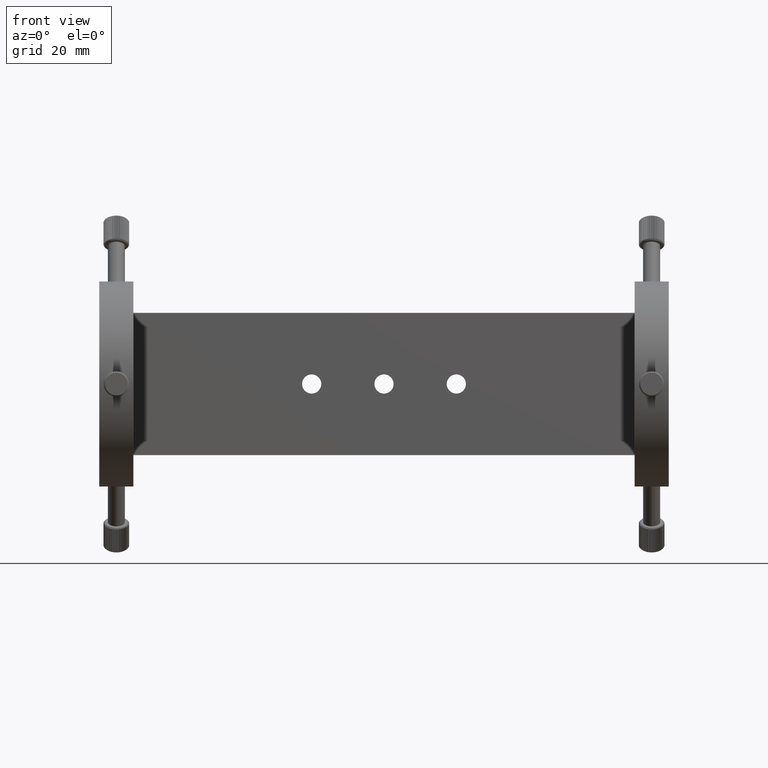
[diagram: clean part render]
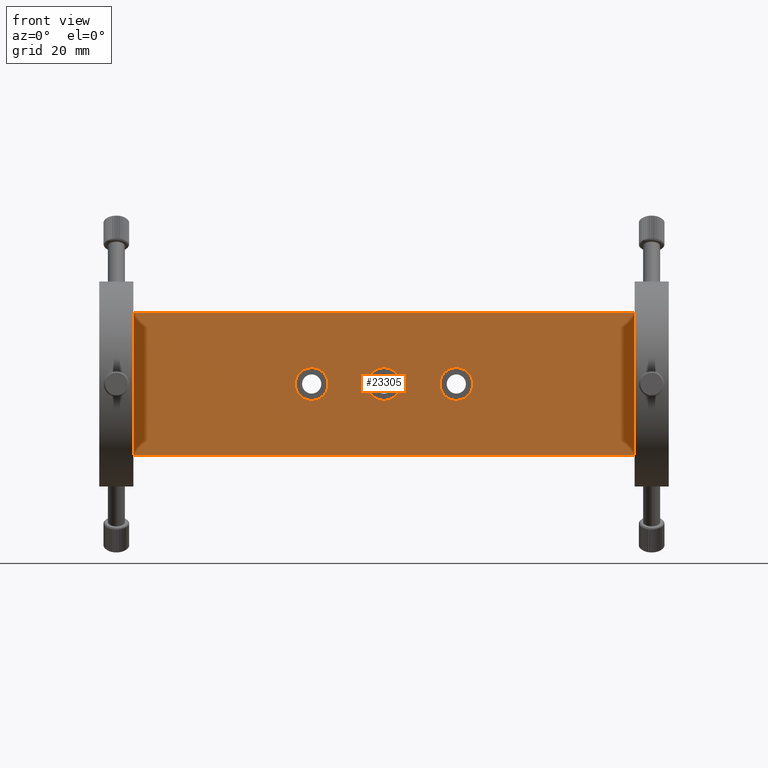
[diagram: same view with one face highlighted and labeled with its STEP entity id]
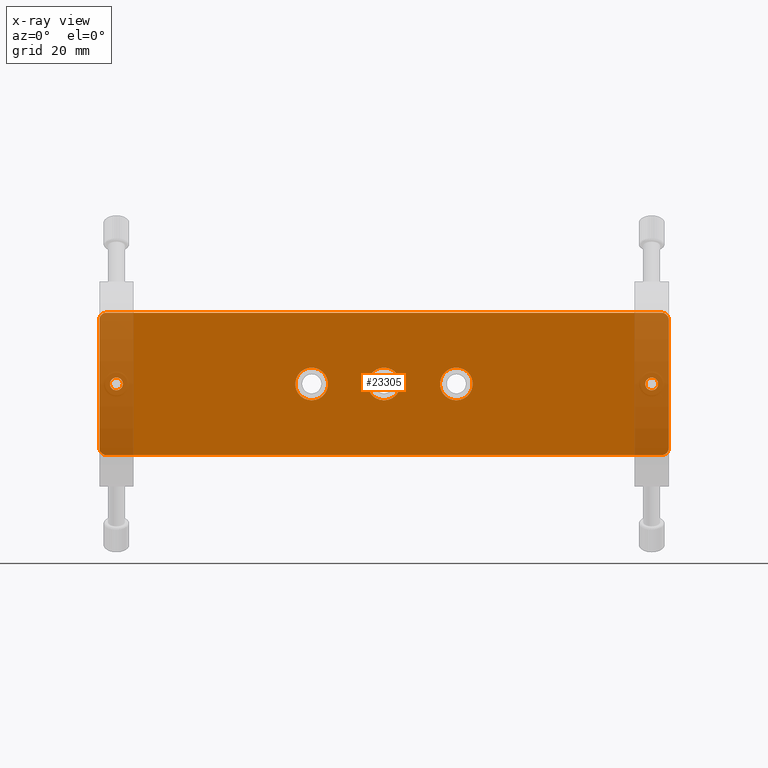
[diagram: x-ray of the same camera — body ghosted, the highlighted face saturated]
A machine part, front view. The second image highlights one B-rep face of the part: STEP entity #23305.
The next image is the same camera in x-ray: the body ghosted, the highlighted face saturated — about 12% of this face is hidden behind the body in this view.
In plain terms, the highlighted planar face has unit normal (-0, -1, 0).
Its self-contained STEP definition (entity closure, byte-faithful):
#12 = CARTESIAN_POINT ( 'NONE',  ( 96.36693914623070600, -17.41295791704509100, 22.50000000000001800 ) ) ;
#622 = AXIS2_PLACEMENT_3D ( 'NONE', #19134, #9030, #29697 ) ;
#631 = CARTESIAN_POINT ( 'NONE',  ( 21.76693914623065900, -17.41295791704509100, -5.754369999999993500 ) ) ;
#735 = VERTEX_POINT ( 'NONE', #23636 ) ;
#782 = CARTESIAN_POINT ( 'NONE',  ( -103.6330608537693600, -17.41295791704509100, -22.50000000000000400 ) ) ;
#911 = CARTESIAN_POINT ( 'NONE',  ( 93.86693914623070600, -17.41295791704509100, 25.00000000000002100 ) ) ;
#1126 = FACE_BOUND ( 'NONE', #17413, .T. ) ;
#1275 = AXIS2_PLACEMENT_3D ( 'NONE', #18523, #23400, #25965 ) ;
#1679 = VECTOR ( 'NONE', #10974, 1000.000000000000000 ) ;
#2050 = VERTEX_POINT ( 'NONE', #25296 ) ;
#2143 = AXIS2_PLACEMENT_3D ( 'NONE', #12743, #17834, #28282 ) ;
#2402 = ORIENTED_EDGE ( 'NONE', *, *, #28344, .F. ) ;
#2664 = DIRECTION ( 'NONE',  ( 5.551115123125781500E-017, -3.212344377754001400E-032, -1.000000000000000000 ) ) ;
#3037 = ORIENTED_EDGE ( 'NONE', *, *, #29666, .T. ) ;
#3077 = ORIENTED_EDGE ( 'NONE', *, *, #31560, .T. ) ;
#3154 = EDGE_LOOP ( 'NONE', ( #11352, #2402 ) ) ;
#3293 = AXIS2_PLACEMENT_3D ( 'NONE', #22539, #4774, #9878 ) ;
#3546 = EDGE_LOOP ( 'NONE', ( #6267, #3037, #3960, #24044, #3077, #10363, #19700, #16225 ) ) ;
#3690 = CARTESIAN_POINT ( 'NONE',  ( 90.36693914623070600, -17.41295791704509100, 1.215694211964546400E-014 ) ) ;
#3960 = ORIENTED_EDGE ( 'NONE', *, *, #14288, .T. ) ;
#4068 = EDGE_CURVE ( 'NONE', #11622, #24386, #18087, .T. ) ;
#4246 = EDGE_CURVE ( 'NONE', #27358, #5417, #10125, .T. ) ;
#4525 = VECTOR ( 'NONE', #9157, 1000.000000000000000 ) ;
#4774 = DIRECTION ( 'NONE',  ( -1.438252834678956100E-032, -1.000000000000000000, 3.212344377754002500E-032 ) ) ;
#4822 = VERTEX_POINT ( 'NONE', #25594 ) ;
#5114 = CARTESIAN_POINT ( 'NONE',  ( 93.86693914623070600, -17.41295791704509100, -24.99999999999999300 ) ) ;
#5144 = FACE_OUTER_BOUND ( 'NONE', #3546, .T. ) ;
#5417 = VERTEX_POINT ( 'NONE', #24125 ) ;
#5906 = DIRECTION ( 'NONE',  ( 7.536548205871393800E-017, 0.0000000000000000000, -1.000000000000000000 ) ) ;
#6001 = DIRECTION ( 'NONE',  ( 7.536548205871393800E-017, 0.0000000000000000000, -1.000000000000000000 ) ) ;
#6188 = CARTESIAN_POINT ( 'NONE',  ( 96.36693914623070600, -17.41295791704509100, -22.49999999999998900 ) ) ;
#6267 = ORIENTED_EDGE ( 'NONE', *, *, #18763, .T. ) ;
#6279 = DIRECTION ( 'NONE',  ( -1.438252834678956100E-032, -1.000000000000000000, 3.212344377754002500E-032 ) ) ;
#6751 = FACE_BOUND ( 'NONE', #3154, .T. ) ;
#6902 = CIRCLE ( 'NONE', #2143, 2.500000000000002200 ) ;
#6930 = CARTESIAN_POINT ( 'NONE',  ( -97.63306085376935100, -17.41295791704509100, 1.720845688168992600E-015 ) ) ;
#7175 = DIRECTION ( 'NONE',  ( -1.438252834678956100E-032, -1.000000000000000000, 3.212344377754002500E-032 ) ) ;
#7233 = AXIS2_PLACEMENT_3D ( 'NONE', #18246, #18694, #21151 ) ;
#7281 = AXIS2_PLACEMENT_3D ( 'NONE', #24208, #31432, #6001 ) ;
#7379 = EDGE_CURVE ( 'NONE', #14497, #9954, #33044, .T. ) ;
#7605 = VECTOR ( 'NONE', #9492, 1000.000000000000000 ) ;
#7764 = DIRECTION ( 'NONE',  ( 0.0000000000000000000, 0.0000000000000000000, -1.000000000000000000 ) ) ;
#7838 = AXIS2_PLACEMENT_3D ( 'NONE', #22387, #7175, #12293 ) ;
#7843 = ORIENTED_EDGE ( 'NONE', *, *, #4246, .F. ) ;
#8232 = CARTESIAN_POINT ( 'NONE',  ( -3.633060853769326700, -17.41295791704509100, 6.938893903907228400E-015 ) ) ;
#8654 = DIRECTION ( 'NONE',  ( 0.0000000000000000000, 0.0000000000000000000, -1.000000000000000000 ) ) ;
#8790 = ORIENTED_EDGE ( 'NONE', *, *, #24368, .F. ) ;
#9030 = DIRECTION ( 'NONE',  ( -1.438252834678956100E-032, -1.000000000000000000, 3.212344377754002500E-032 ) ) ;
#9157 = DIRECTION ( 'NONE',  ( 5.551115123125782100E-017, -3.212344377754001400E-032, -1.000000000000000000 ) ) ;
#9258 = DIRECTION ( 'NONE',  ( 0.0000000000000000000, 0.0000000000000000000, -1.000000000000000000 ) ) ;
#9492 = DIRECTION ( 'NONE',  ( -1.000000000000000000, 1.438252834678955600E-032, -5.551115123125781500E-017 ) ) ;
#9764 = CARTESIAN_POINT ( 'NONE',  ( -29.03306085376933900, -17.41295791704509100, -6.922950770352763500E-016 ) ) ;
#9878 = DIRECTION ( 'NONE',  ( 0.0000000000000000000, 0.0000000000000000000, -1.000000000000000000 ) ) ;
#9888 = EDGE_CURVE ( 'NONE', #9954, #4822, #30942, .T. ) ;
#9954 = VERTEX_POINT ( 'NONE', #11560 ) ;
#10125 = CIRCLE ( 'NONE', #12389, 5.754370000000000700 ) ;
#10363 = ORIENTED_EDGE ( 'NONE', *, *, #7379, .T. ) ;
#10400 = DIRECTION ( 'NONE',  ( 1.000000000000000000, -1.438252834678955600E-032, 5.551115123125781500E-017 ) ) ;
#10856 = AXIS2_PLACEMENT_3D ( 'NONE', #14354, #29460, #16896 ) ;
#10974 = DIRECTION ( 'NONE',  ( -5.551115123125782100E-017, 3.212344377754001400E-032, 1.000000000000000000 ) ) ;
#11056 = EDGE_CURVE ( 'NONE', #14624, #2050, #31293, .T. ) ;
#11317 = LINE ( 'NONE', #782, #4525 ) ;
#11352 = ORIENTED_EDGE ( 'NONE', *, *, #21206, .F. ) ;
#11560 = CARTESIAN_POINT ( 'NONE',  ( -101.1330608537693500, -17.41295791704509100, 25.00000000000000700 ) ) ;
#11622 = VERTEX_POINT ( 'NONE', #31250 ) ;
#11643 = EDGE_CURVE ( 'NONE', #24386, #11622, #17713, .T. ) ;
#12293 = DIRECTION ( 'NONE',  ( 0.0000000000000000000, 0.0000000000000000000, -1.000000000000000000 ) ) ;
#12303 = EDGE_LOOP ( 'NONE', ( #7843, #22808 ) ) ;
#12389 = AXIS2_PLACEMENT_3D ( 'NONE', #8232, #28326, #5906 ) ;
#12610 = CIRCLE ( 'NONE', #30068, 2.250000000000002200 ) ;
#12697 = AXIS2_PLACEMENT_3D ( 'NONE', #28009, #32816, #2664 ) ;
#12743 = CARTESIAN_POINT ( 'NONE',  ( 93.86693914623070600, -17.41295791704509100, -22.49999999999998900 ) ) ;
#12782 = EDGE_LOOP ( 'NONE', ( #23652, #28638 ) ) ;
#12824 = LINE ( 'NONE', #6188, #1679 ) ;
#13643 = VERTEX_POINT ( 'NONE', #16341 ) ;
#14183 = ORIENTED_EDGE ( 'NONE', *, *, #4068, .F. ) ;
#14288 = EDGE_CURVE ( 'NONE', #24534, #18650, #6902, .T. ) ;
#14316 = CARTESIAN_POINT ( 'NONE',  ( -97.63306085376935100, -17.41295791704509100, 1.720845688168992600E-015 ) ) ;
#14354 = CARTESIAN_POINT ( 'NONE',  ( 21.76693914623065900, -17.41295791704509100, 8.348877145181175900E-015 ) ) ;
#14385 = EDGE_CURVE ( 'NONE', #18650, #26985, #12824, .T. ) ;
#14424 = DIRECTION ( 'NONE',  ( -1.438252834678956100E-032, -1.000000000000000000, 3.212344377754002500E-032 ) ) ;
#14497 = VERTEX_POINT ( 'NONE', #911 ) ;
#14624 = VERTEX_POINT ( 'NONE', #631 ) ;
#14631 = DIRECTION ( 'NONE',  ( 0.0000000000000000000, 0.0000000000000000000, -1.000000000000000000 ) ) ;
#15148 = CARTESIAN_POINT ( 'NONE',  ( -3.633060853769326300, -17.41295791704509100, -5.754369999999993500 ) ) ;
#15192 = VERTEX_POINT ( 'NONE', #15754 ) ;
#15201 = CARTESIAN_POINT ( 'NONE',  ( 96.36693914623070600, -17.41295791704509100, -22.49999999999998900 ) ) ;
#15478 = FACE_BOUND ( 'NONE', #29609, .T. ) ;
#15754 = CARTESIAN_POINT ( 'NONE',  ( 90.36693914623070600, -17.41295791704509100, -2.249999999999989800 ) ) ;
#16225 = ORIENTED_EDGE ( 'NONE', *, *, #30924, .T. ) ;
#16341 = CARTESIAN_POINT ( 'NONE',  ( -97.63306085376935100, -17.41295791704509100, 2.250000000000003600 ) ) ;
#16412 = AXIS2_PLACEMENT_3D ( 'NONE', #9764, #30199, #7764 ) ;
#16817 = CIRCLE ( 'NONE', #1275, 2.500000000000002200 ) ;
#16896 = DIRECTION ( 'NONE',  ( 0.0000000000000000000, 0.0000000000000000000, -1.000000000000000000 ) ) ;
#17413 = EDGE_LOOP ( 'NONE', ( #18154, #8790 ) ) ;
#17713 = CIRCLE ( 'NONE', #7233, 5.754370000000002400 ) ;
#17834 = DIRECTION ( 'NONE',  ( -1.438252834678956100E-032, -1.000000000000000000, 3.212344377754002500E-032 ) ) ;
#18087 = CIRCLE ( 'NONE', #16412, 5.754370000000002400 ) ;
#18154 = ORIENTED_EDGE ( 'NONE', *, *, #11056, .F. ) ;
#18246 = CARTESIAN_POINT ( 'NONE',  ( -29.03306085376933900, -17.41295791704509100, -6.922950770352763500E-016 ) ) ;
#18523 = CARTESIAN_POINT ( 'NONE',  ( -101.1330608537693500, -17.41295791704509100, -22.50000000000000400 ) ) ;
#18650 = VERTEX_POINT ( 'NONE', #15201 ) ;
#18694 = DIRECTION ( 'NONE',  ( -1.438252834678956100E-032, -1.000000000000000000, 3.212344377754002500E-032 ) ) ;
#18763 = EDGE_CURVE ( 'NONE', #22050, #31894, #16817, .T. ) ;
#19134 = CARTESIAN_POINT ( 'NONE',  ( 90.36693914623070600, -17.41295791704509100, 1.215694211964546400E-014 ) ) ;
#19700 = ORIENTED_EDGE ( 'NONE', *, *, #9888, .T. ) ;
#20047 = CARTESIAN_POINT ( 'NONE',  ( 90.36693914623070600, -17.41295791704509100, 2.250000000000014200 ) ) ;
#20307 = ORIENTED_EDGE ( 'NONE', *, *, #11643, .F. ) ;
#20310 = CARTESIAN_POINT ( 'NONE',  ( -101.1330608537693500, -17.41295791704509100, 25.00000000000000700 ) ) ;
#20476 = CARTESIAN_POINT ( 'NONE',  ( -29.03306085376933900, -17.41295791704509100, -5.754370000000003300 ) ) ;
#21151 = DIRECTION ( 'NONE',  ( 0.0000000000000000000, 0.0000000000000000000, -1.000000000000000000 ) ) ;
#21206 = EDGE_CURVE ( 'NONE', #13643, #735, #27483, .T. ) ;
#21361 = CIRCLE ( 'NONE', #7281, 5.754370000000000700 ) ;
#21977 = CIRCLE ( 'NONE', #27376, 2.250000000000002200 ) ;
#22050 = VERTEX_POINT ( 'NONE', #26382 ) ;
#22387 = CARTESIAN_POINT ( 'NONE',  ( 21.76693914623065900, -17.41295791704509100, 8.348877145181175900E-015 ) ) ;
#22539 = CARTESIAN_POINT ( 'NONE',  ( 93.86693914623070600, -17.41295791704509100, 22.50000000000001800 ) ) ;
#22569 = PLANE ( 'NONE',  #12697 ) ;
#22808 = ORIENTED_EDGE ( 'NONE', *, *, #28190, .F. ) ;
#23305 = ADVANCED_FACE ( 'NONE', ( #15478, #1126, #27390, #26603, #6751, #5144 ), #22569, .T. ) ;
#23400 = DIRECTION ( 'NONE',  ( -1.438252834678956100E-032, -1.000000000000000000, 3.212344377754002500E-032 ) ) ;
#23554 = DIRECTION ( 'NONE',  ( -1.438252834678956100E-032, -1.000000000000000000, 3.212344377754002500E-032 ) ) ;
#23636 = CARTESIAN_POINT ( 'NONE',  ( -97.63306085376935100, -17.41295791704509100, -2.250000000000000400 ) ) ;
#23652 = ORIENTED_EDGE ( 'NONE', *, *, #32549, .F. ) ;
#24044 = ORIENTED_EDGE ( 'NONE', *, *, #14385, .T. ) ;
#24125 = CARTESIAN_POINT ( 'NONE',  ( -3.633060853769326300, -17.41295791704509100, 5.754370000000006900 ) ) ;
#24208 = CARTESIAN_POINT ( 'NONE',  ( -3.633060853769326700, -17.41295791704509100, 6.938893903907228400E-015 ) ) ;
#24368 = EDGE_CURVE ( 'NONE', #2050, #14624, #29738, .T. ) ;
#24386 = VERTEX_POINT ( 'NONE', #20476 ) ;
#24388 = DIRECTION ( 'NONE',  ( -1.438252834678956100E-032, -1.000000000000000000, 3.212344377754002500E-032 ) ) ;
#24534 = VERTEX_POINT ( 'NONE', #5114 ) ;
#24937 = AXIS2_PLACEMENT_3D ( 'NONE', #28761, #23554, #8654 ) ;
#25259 = VECTOR ( 'NONE', #10400, 1000.000000000000000 ) ;
#25296 = CARTESIAN_POINT ( 'NONE',  ( 21.76693914623065900, -17.41295791704509100, 5.754370000000010400 ) ) ;
#25594 = CARTESIAN_POINT ( 'NONE',  ( -103.6330608537693600, -17.41295791704509100, 22.50000000000000400 ) ) ;
#25834 = CARTESIAN_POINT ( 'NONE',  ( -101.1330608537693500, -17.41295791704509100, -25.00000000000000700 ) ) ;
#25965 = DIRECTION ( 'NONE',  ( 0.0000000000000000000, 0.0000000000000000000, -1.000000000000000000 ) ) ;
#26382 = CARTESIAN_POINT ( 'NONE',  ( -103.6330608537693600, -17.41295791704509100, -22.50000000000000400 ) ) ;
#26603 = FACE_BOUND ( 'NONE', #12782, .T. ) ;
#26985 = VERTEX_POINT ( 'NONE', #12 ) ;
#27358 = VERTEX_POINT ( 'NONE', #15148 ) ;
#27376 = AXIS2_PLACEMENT_3D ( 'NONE', #3690, #6279, #9258 ) ;
#27390 = FACE_BOUND ( 'NONE', #12303, .T. ) ;
#27431 = VERTEX_POINT ( 'NONE', #20047 ) ;
#27483 = CIRCLE ( 'NONE', #30757, 2.250000000000002200 ) ;
#27706 = EDGE_CURVE ( 'NONE', #15192, #27431, #28314, .T. ) ;
#28009 = CARTESIAN_POINT ( 'NONE',  ( -101.1330608537693500, -17.41295791704509100, -22.50000000000000400 ) ) ;
#28100 = CARTESIAN_POINT ( 'NONE',  ( -101.1330608537693500, -17.41295791704509100, -25.00000000000000700 ) ) ;
#28190 = EDGE_CURVE ( 'NONE', #5417, #27358, #21361, .T. ) ;
#28282 = DIRECTION ( 'NONE',  ( 0.0000000000000000000, 0.0000000000000000000, -1.000000000000000000 ) ) ;
#28314 = CIRCLE ( 'NONE', #622, 2.250000000000002200 ) ;
#28326 = DIRECTION ( 'NONE',  ( -1.438252834678956100E-032, -1.000000000000000000, 3.212344377754002500E-032 ) ) ;
#28344 = EDGE_CURVE ( 'NONE', #735, #13643, #12610, .T. ) ;
#28638 = ORIENTED_EDGE ( 'NONE', *, *, #27706, .F. ) ;
#28761 = CARTESIAN_POINT ( 'NONE',  ( -101.1330608537693500, -17.41295791704509100, 22.50000000000000400 ) ) ;
#29460 = DIRECTION ( 'NONE',  ( -1.438252834678956100E-032, -1.000000000000000000, 3.212344377754002500E-032 ) ) ;
#29609 = EDGE_LOOP ( 'NONE', ( #20307, #14183 ) ) ;
#29666 = EDGE_CURVE ( 'NONE', #31894, #24534, #32037, .T. ) ;
#29697 = DIRECTION ( 'NONE',  ( 0.0000000000000000000, 0.0000000000000000000, -1.000000000000000000 ) ) ;
#29738 = CIRCLE ( 'NONE', #7838, 5.754370000000002400 ) ;
#30068 = AXIS2_PLACEMENT_3D ( 'NONE', #14316, #14424, #14631 ) ;
#30199 = DIRECTION ( 'NONE',  ( -1.438252834678956100E-032, -1.000000000000000000, 3.212344377754002500E-032 ) ) ;
#30757 = AXIS2_PLACEMENT_3D ( 'NONE', #6930, #24388, #32165 ) ;
#30777 = CIRCLE ( 'NONE', #3293, 2.500000000000002200 ) ;
#30924 = EDGE_CURVE ( 'NONE', #4822, #22050, #11317, .T. ) ;
#30942 = CIRCLE ( 'NONE', #24937, 2.500000000000002200 ) ;
#31250 = CARTESIAN_POINT ( 'NONE',  ( -29.03306085376933900, -17.41295791704509100, 5.754370000000000700 ) ) ;
#31293 = CIRCLE ( 'NONE', #10856, 5.754370000000002400 ) ;
#31432 = DIRECTION ( 'NONE',  ( -1.438252834678956100E-032, -1.000000000000000000, 3.212344377754002500E-032 ) ) ;
#31560 = EDGE_CURVE ( 'NONE', #26985, #14497, #30777, .T. ) ;
#31894 = VERTEX_POINT ( 'NONE', #28100 ) ;
#32037 = LINE ( 'NONE', #25834, #25259 ) ;
#32165 = DIRECTION ( 'NONE',  ( 0.0000000000000000000, 0.0000000000000000000, -1.000000000000000000 ) ) ;
#32549 = EDGE_CURVE ( 'NONE', #27431, #15192, #21977, .T. ) ;
#32816 = DIRECTION ( 'NONE',  ( -1.438252834678956100E-032, -1.000000000000000000, 3.212344377754001400E-032 ) ) ;
#33044 = LINE ( 'NONE', #20310, #7605 ) ;